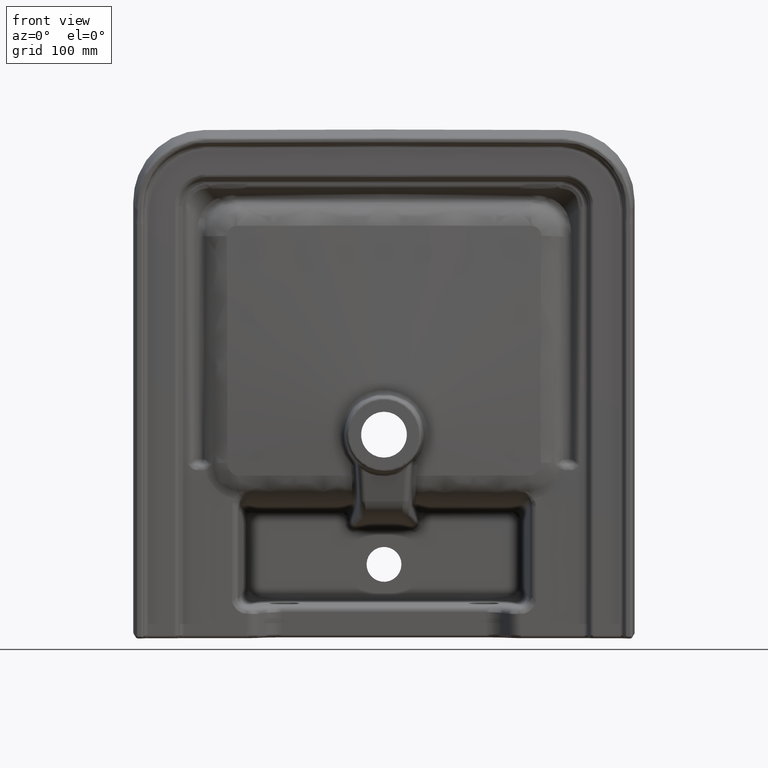
[diagram: clean part render]
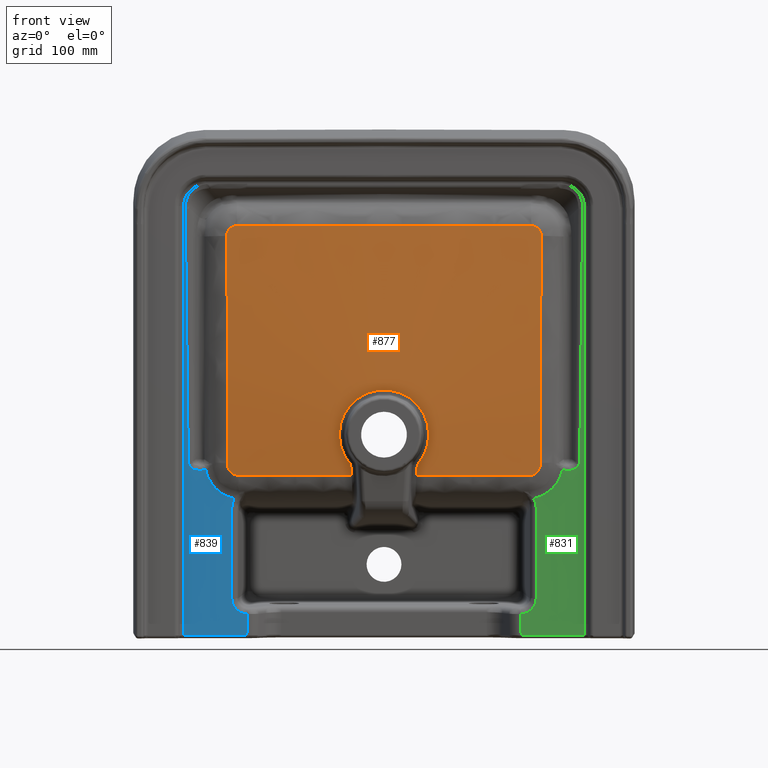
[diagram: same view with three faces highlighted in distinct colors, each labeled with its STEP entity id]
A machine part, front view with three faces highlighted in distinct colors.
Their STEP definitions:

[orange] entity #877 — the highlighted conical surface has half-angle 87 deg.
#877=ADVANCED_FACE('',(#1174),#1132,.T.);
#1132=CONICAL_SURFACE('',#4756,37.9820213470923,86.9999999999996);
#1174=FACE_OUTER_BOUND('',#1479,.T.);
#1479=EDGE_LOOP('',(#2217,#2218,#2219,#2220,#2221,#2222,#2223,#2224,#2225,
#2226,#2227,#2228,#2229,#2230));
#1749=CIRCLE('',#4755,44.7462954527049);
#2217=ORIENTED_EDGE('',*,*,#3921,.F.);
#2218=ORIENTED_EDGE('',*,*,#3970,.T.);
#2219=ORIENTED_EDGE('',*,*,#3971,.T.);
#2220=ORIENTED_EDGE('',*,*,#3972,.T.);
#2221=ORIENTED_EDGE('',*,*,#3973,.T.);
#2222=ORIENTED_EDGE('',*,*,#3974,.T.);
#2223=ORIENTED_EDGE('',*,*,#3975,.T.);
#2224=ORIENTED_EDGE('',*,*,#3976,.T.);
#2225=ORIENTED_EDGE('',*,*,#3977,.F.);
#2226=ORIENTED_EDGE('',*,*,#3978,.T.);
#2227=ORIENTED_EDGE('',*,*,#3969,.F.);
#2228=ORIENTED_EDGE('',*,*,#3962,.F.);
#2229=ORIENTED_EDGE('',*,*,#3966,.T.);
#2230=ORIENTED_EDGE('',*,*,#3914,.F.);
#3504=VERTEX_POINT('',#6791);
#3505=VERTEX_POINT('',#6800);
#3510=VERTEX_POINT('',#7107);
#3540=VERTEX_POINT('',#7634);
#3541=VERTEX_POINT('',#7641);
#3544=VERTEX_POINT('',#7742);
#3545=VERTEX_POINT('',#7780);
#3546=VERTEX_POINT('',#7788);
#3547=VERTEX_POINT('',#7790);
#3548=VERTEX_POINT('',#7798);
#3549=VERTEX_POINT('',#7806);
#3550=VERTEX_POINT('',#7813);
#3551=VERTEX_POINT('',#7826);
#3552=VERTEX_POINT('',#7833);
#3914=EDGE_CURVE('',#3504,#3505,#4458,.T.);
#3921=EDGE_CURVE('',#3510,#3504,#4462,.T.);
#3962=EDGE_CURVE('',#3540,#3541,#4486,.T.);
#3966=EDGE_CURVE('',#3540,#3505,#4490,.T.);
#3969=EDGE_CURVE('',#3541,#3544,#4493,.T.);
#3970=EDGE_CURVE('',#3510,#3545,#4494,.T.);
#3971=EDGE_CURVE('',#3545,#3546,#4495,.T.);
#3972=EDGE_CURVE('',#3546,#3547,#1749,.T.);
#3973=EDGE_CURVE('',#3547,#3548,#4496,.T.);
#3974=EDGE_CURVE('',#3548,#3549,#4497,.T.);
#3975=EDGE_CURVE('',#3549,#3550,#4498,.T.);
#3976=EDGE_CURVE('',#3550,#3551,#4499,.T.);
#3977=EDGE_CURVE('',#3552,#3551,#4500,.T.);
#3978=EDGE_CURVE('',#3552,#3544,#4501,.T.);
#4458=B_SPLINE_CURVE_WITH_KNOTS('',3,(#6792,#6793,#6794,#6795,#6796,#6797,
#6798,#6799),.UNSPECIFIED.,.F.,.F.,(4,2,2,4),(0.,0.499999999999999,0.749999999999999,
1.),.UNSPECIFIED.);
#4462=B_SPLINE_CURVE_WITH_KNOTS('',3,(#7108,#7109,#7110,#7111,#7112,#7113),
 .UNSPECIFIED.,.F.,.F.,(4,2,4),(0.,0.5,1.),.UNSPECIFIED.);
#4486=B_SPLINE_CURVE_WITH_KNOTS('',3,(#7635,#7636,#7637,#7638,#7639,#7640),
 .UNSPECIFIED.,.F.,.F.,(4,2,4),(0.,0.5,1.),.UNSPECIFIED.);
#4490=B_SPLINE_CURVE_WITH_KNOTS('',3,(#7705,#7706,#7707,#7708,#7709,#7710),
 .UNSPECIFIED.,.F.,.F.,(4,2,4),(0.,0.5,1.),.UNSPECIFIED.);
#4493=B_SPLINE_CURVE_WITH_KNOTS('',3,(#7749,#7750,#7751,#7752,#7753,#7754),
 .UNSPECIFIED.,.F.,.F.,(4,2,4),(0.,0.5,1.),.UNSPECIFIED.);
#4494=B_SPLINE_CURVE_WITH_KNOTS('',3,(#7773,#7774,#7775,#7776,#7777,#7778,
#7779),.UNSPECIFIED.,.F.,.F.,(4,3,4),(0.,0.874748321179559,1.),
 .UNSPECIFIED.);
#4495=B_SPLINE_CURVE_WITH_KNOTS('',3,(#7781,#7782,#7783,#7784,#7785,#7786,
#7787),.UNSPECIFIED.,.F.,.F.,(4,3,4),(0.,0.500229342575856,1.),
 .UNSPECIFIED.);
#4496=B_SPLINE_CURVE_WITH_KNOTS('',3,(#7791,#7792,#7793,#7794,#7795,#7796,
#7797),.UNSPECIFIED.,.F.,.F.,(4,3,4),(0.,0.49971391721569,1.),
 .UNSPECIFIED.);
#4497=B_SPLINE_CURVE_WITH_KNOTS('',3,(#7799,#7800,#7801,#7802,#7803,#7804,
#7805),.UNSPECIFIED.,.F.,.F.,(4,3,4),(0.,0.874749603145599,1.),
 .UNSPECIFIED.);
#4498=B_SPLINE_CURVE_WITH_KNOTS('',3,(#7807,#7808,#7809,#7810,#7811,#7812),
 .UNSPECIFIED.,.F.,.F.,(4,2,4),(0.,0.5,1.),.UNSPECIFIED.);
#4499=B_SPLINE_CURVE_WITH_KNOTS('',3,(#7814,#7815,#7816,#7817,#7818,#7819,
#7820,#7821,#7822,#7823,#7824,#7825),.UNSPECIFIED.,.F.,.F.,(4,2,2,2,2,4),
(0.,0.249999999999999,0.499999999999997,0.624999999999998,0.749999999999999,
1.),.UNSPECIFIED.);
#4500=B_SPLINE_CURVE_WITH_KNOTS('',3,(#7827,#7828,#7829,#7830,#7831,#7832),
 .UNSPECIFIED.,.F.,.F.,(4,2,4),(0.,0.5,1.),.UNSPECIFIED.);
#4501=B_SPLINE_CURVE_WITH_KNOTS('',3,(#7834,#7835,#7836,#7837,#7838,#7839),
 .UNSPECIFIED.,.F.,.F.,(4,2,4),(0.,0.5,1.),.UNSPECIFIED.);
#4755=AXIS2_PLACEMENT_3D('',#7789,#5340,#5341);
#4756=AXIS2_PLACEMENT_3D('',#7840,#5342,#5343);
#5340=DIRECTION('',(-6.34801581780895E-016,-6.93889390390723E-017,1.));
#5341=DIRECTION('',(0.,-1.,0.));
#5342=DIRECTION('',(-6.34801581780895E-016,-6.93889390390723E-017,1.));
#5343=DIRECTION('',(0.,-1.,-7.04083403551022E-017));
#6791=CARTESIAN_POINT('',(-145.554523362526,31.3025230196488,-88.4656582222858));
#6792=CARTESIAN_POINT('',(-145.554523362526,31.3025230196488,-88.4656582222858));
#6793=CARTESIAN_POINT('',(-148.882852242933,31.3085658589114,-88.2976231939072));
#6794=CARTESIAN_POINT('',(-151.958828744813,29.4980595286883,-88.1673626140171));
#6795=CARTESIAN_POINT('',(-154.895589265459,25.8305807432552,-88.0620585088615));
#6796=CARTESIAN_POINT('',(-155.632770311051,24.4235015863187,-88.0404557178409));
#6797=CARTESIAN_POINT('',(-156.554024810186,21.5393208026177,-88.024002049375));
#6798=CARTESIAN_POINT('',(-156.755211677679,20.0439413903544,-88.0285207375483));
#6799=CARTESIAN_POINT('',(-156.754727608147,18.5522291548998,-88.0423274827736));
#6800=CARTESIAN_POINT('',(-156.754727608147,18.5522291549,-88.0423274827736));
#7107=CARTESIAN_POINT('',(-32.5179553833555,31.6342061924633,-93.6393109920751));
#7108=CARTESIAN_POINT('',(-32.5179553833555,31.6342061924633,-93.6393109920751));
#7109=CARTESIAN_POINT('',(-51.3672196133581,31.4181567759858,-93.0357722966846));
#7110=CARTESIAN_POINT('',(-70.2077153502199,31.3148044112133,-92.1516979892438));
#7111=CARTESIAN_POINT('',(-107.883467004444,31.2488477206845,-90.3581168637296));
#7112=CARTESIAN_POINT('',(-126.719217152985,31.268388040414,-89.4165823669746));
#7113=CARTESIAN_POINT('',(-145.554523362526,31.3025230196489,-88.4656582222858));
#7634=CARTESIAN_POINT('',(-157.293445409113,-208.422860572705,-83.0986228961144));
#7635=CARTESIAN_POINT('',(-157.293445409113,-208.422860572705,-83.0986228961144));
#7636=CARTESIAN_POINT('',(-157.31037487513,-211.065636254106,-82.9894354316689));
#7637=CARTESIAN_POINT('',(-156.306318011308,-213.692928676144,-82.9130877165868));
#7638=CARTESIAN_POINT('',(-152.66030199412,-217.436376295259,-82.870745639926));
#7639=CARTESIAN_POINT('',(-150.038968170621,-218.509386335489,-82.9057552560283));
#7640=CARTESIAN_POINT('',(-147.393974167425,-218.515207700528,-82.985397369272));
#7641=CARTESIAN_POINT('',(-147.393974167425,-218.515207700528,-82.985397369272));
#7705=CARTESIAN_POINT('',(-157.293445409113,-208.422860572705,-83.0986228961144));
#7706=CARTESIAN_POINT('',(-157.051232070858,-170.610107429827,-84.6608733575061));
#7707=CARTESIAN_POINT('',(-156.88458345608,-132.793085909072,-86.0773584915201));
#7708=CARTESIAN_POINT('',(-156.73998733156,-57.1400139543229,-87.9810480569293));
#7709=CARTESIAN_POINT('',(-156.742352540124,-19.3019306750332,-88.3926965041148));
#7710=CARTESIAN_POINT('',(-156.754727608147,18.5522291548998,-88.0423274827736));
#7742=CARTESIAN_POINT('',(147.393974167425,-218.515207700528,-82.985397369272));
#7749=CARTESIAN_POINT('',(-147.393974167425,-218.515207700529,-82.985397369272));
#7750=CARTESIAN_POINT('',(-98.2697081576221,-218.623325255658,-84.4645539767458));
#7751=CARTESIAN_POINT('',(-49.1354527045037,-218.695197202606,-85.4258363238161));
#7752=CARTESIAN_POINT('',(49.1290554626531,-218.695203439317,-85.4259147465328));
#7753=CARTESIAN_POINT('',(98.2697612986819,-218.623325138645,-84.4645523766442));
#7754=CARTESIAN_POINT('',(147.393974167425,-218.515207700445,-82.9853973692754));
#7773=CARTESIAN_POINT('',(-32.5179553833555,31.6342061924633,-93.6393109920751));
#7774=CARTESIAN_POINT('',(-32.74869131655,28.5117103219667,-93.7602145284705));
#7775=CARTESIAN_POINT('',(-32.9794880326108,25.3889480942862,-93.8745142739354));
#7776=CARTESIAN_POINT('',(-33.2109302013739,22.2659094326996,-93.9789232678108));
#7777=CARTESIAN_POINT('',(-33.2440695980819,21.8187324221584,-93.9938732273899));
#7778=CARTESIAN_POINT('',(-33.2772231692795,21.3715495573298,-94.0086182366609));
#7779=CARTESIAN_POINT('',(-33.3103936382291,20.9243609493631,-94.0231464353329));
#7780=CARTESIAN_POINT('',(-33.3103936382291,20.9243609493631,-94.0231464353329));
#7781=CARTESIAN_POINT('',(-33.3103936382291,20.9243609493631,-94.0231464353329));
#7782=CARTESIAN_POINT('',(-33.3249522130228,20.7280891147427,-94.0295228862449));
#7783=CARTESIAN_POINT('',(-33.3716960155278,20.5316699715773,-94.0346156673274));
#7784=CARTESIAN_POINT('',(-33.4473778752837,20.3499118078292,-94.0380024513947));
#7785=CARTESIAN_POINT('',(-33.5229863098715,20.1683299825559,-94.0413859496655));
#7786=CARTESIAN_POINT('',(-33.6293780303713,19.9968537726137,-94.043149453271));
#7787=CARTESIAN_POINT('',(-33.7585005532792,19.8484374096721,-94.043149453271));
#7788=CARTESIAN_POINT('',(-33.7585005532759,19.8484374096691,-94.0431494532713));
#7789=CARTESIAN_POINT('',(2.31796640504317E-014,-9.52152338593345,-94.0431494532713));
#7790=CARTESIAN_POINT('',(33.7585005532817,19.8484374096684,-94.0431494532711));
#7791=CARTESIAN_POINT('',(33.7585005532817,19.8484374096684,-94.0431494532711));
#7792=CARTESIAN_POINT('',(33.6293923136813,19.9968373550511,-94.0431494532711));
#7793=CARTESIAN_POINT('',(33.5230098784676,20.168291726284,-94.0413863503453));
#7794=CARTESIAN_POINT('',(33.4474032959059,20.3498507605412,-94.0380035888646));
#7795=CARTESIAN_POINT('',(33.3717065526435,20.5316263035891,-94.0346167934476));
#7796=CARTESIAN_POINT('',(33.3249538219857,20.7280674234645,-94.029523590948));
#7797=CARTESIAN_POINT('',(33.3103936382292,20.9243609493621,-94.023146435333));
#7798=CARTESIAN_POINT('',(33.3103936382292,20.9243609493621,-94.023146435333));
#7799=CARTESIAN_POINT('',(33.3103936382292,20.9243609493621,-94.023146435333));
#7800=CARTESIAN_POINT('',(33.0787341379789,24.0474850027641,-93.9216828338081));
#7801=CARTESIAN_POINT('',(32.847849184382,27.170333622141,-93.8097516808954));
#7802=CARTESIAN_POINT('',(32.6170764113239,30.2929071177054,-93.6908251008463));
#7803=CARTESIAN_POINT('',(32.5840332662292,30.740012067373,-93.6737966265245));
#7804=CARTESIAN_POINT('',(32.5509933000522,31.1871117281255,-93.6566225607955));
#7805=CARTESIAN_POINT('',(32.5179553833556,31.6342061924633,-93.6393109920751));
#7806=CARTESIAN_POINT('',(32.5179553833556,31.6342061924633,-93.6393109920751));
#7807=CARTESIAN_POINT('',(32.5179553833556,31.6342061924633,-93.6393109920751));
#7808=CARTESIAN_POINT('',(51.3672196133582,31.4181567759858,-93.0357722966846));
#7809=CARTESIAN_POINT('',(70.20771535022,31.3148044112133,-92.1516979892438));
#7810=CARTESIAN_POINT('',(107.883467004444,31.2488477206845,-90.3581168637296));
#7811=CARTESIAN_POINT('',(126.719217152985,31.268388040414,-89.4165823669746));
#7812=CARTESIAN_POINT('',(145.554523362526,31.3025230196489,-88.4656582222858));
#7813=CARTESIAN_POINT('',(145.554523362526,31.3025230196488,-88.4656582222858));
#7814=CARTESIAN_POINT('',(145.554523362526,31.3025230196488,-88.4656582222856));
#7815=CARTESIAN_POINT('',(147.169671628354,31.3053434913639,-88.3841169381281));
#7816=CARTESIAN_POINT('',(148.853882797833,30.8404140736897,-88.3056032497362));
#7817=CARTESIAN_POINT('',(151.654531253462,29.3584694233233,-88.1834817515871));
#7818=CARTESIAN_POINT('',(152.94983562488,28.2603585748887,-88.131829230183));
#7819=CARTESIAN_POINT('',(154.400085825426,26.4494312201552,-88.0798252007783));
#7820=CARTESIAN_POINT('',(154.838321600758,25.7795671141186,-88.0653386515768));
#7821=CARTESIAN_POINT('',(155.559242355128,24.4269070068363,-88.0438993687645));
#7822=CARTESIAN_POINT('',(155.874097145084,23.6679608204411,-88.0361457793094));
#7823=CARTESIAN_POINT('',(156.531998391688,21.6083119425226,-88.0243950922046));
#7824=CARTESIAN_POINT('',(156.755224118734,20.126072833558,-88.0277612919265));
#7825=CARTESIAN_POINT('',(156.754727608147,18.5522291549001,-88.0423274827735));
#7826=CARTESIAN_POINT('',(156.754727608147,18.5522291549,-88.0423274827736));
#7827=CARTESIAN_POINT('',(157.293445409113,-208.422860572705,-83.0986228961144));
#7828=CARTESIAN_POINT('',(157.051232070858,-170.610107429827,-84.6608733575061));
#7829=CARTESIAN_POINT('',(156.88458345608,-132.793085909072,-86.0773584915201));
#7830=CARTESIAN_POINT('',(156.73998733156,-57.1400139543229,-87.9810480569293));
#7831=CARTESIAN_POINT('',(156.742352540124,-19.3019306750332,-88.3926965041148));
#7832=CARTESIAN_POINT('',(156.754727608147,18.5522291548998,-88.0423274827736));
#7833=CARTESIAN_POINT('',(157.293445409113,-208.422860572705,-83.0986228961144));
#7834=CARTESIAN_POINT('',(157.293445409113,-208.422860572705,-83.0986228961144));
#7835=CARTESIAN_POINT('',(157.31037487513,-211.065636254106,-82.9894354316689));
#7836=CARTESIAN_POINT('',(156.306318011308,-213.692928676144,-82.9130877165868));
#7837=CARTESIAN_POINT('',(152.66030199412,-217.436376295259,-82.870745639926));
#7838=CARTESIAN_POINT('',(150.038968170621,-218.509386335489,-82.9057552560283));
#7839=CARTESIAN_POINT('',(147.393974167425,-218.515207700528,-82.985397369272));
#7840=CARTESIAN_POINT('',(4.40864192343333E-013,-9.5215233859336,-94.3976500376082));

[blue] entity #839 — the highlighted planar face has unit normal (0.0008, -1, -0).
#403=PLANE('',#4687);
#445=ELLIPSE('',#4684,16.1226229395894,15.98);
#446=ELLIPSE('',#4685,18.8098032721995,12.22);
#447=ELLIPSE('',#4686,58.862042705304,34.582882);
#535=LINE('',#6281,#688);
#536=LINE('',#6284,#689);
#537=LINE('',#6286,#690);
#538=LINE('',#6290,#691);
#539=LINE('',#6319,#692);
#540=LINE('',#6323,#693);
#541=LINE('',#6327,#694);
#688=VECTOR('',#5104,1.);
#689=VECTOR('',#5105,1.);
#690=VECTOR('',#5106,1.);
#691=VECTOR('',#5109,1.);
#692=VECTOR('',#5110,1.);
#693=VECTOR('',#5113,1.);
#694=VECTOR('',#5116,1.);
#839=ADVANCED_FACE('',(#1143),#403,.T.);
#1143=FACE_OUTER_BOUND('',#1432,.T.);
#1432=EDGE_LOOP('',(#1964,#1965,#1966,#1967,#1968,#1969,#1970,#1971,#1972,
#1973,#1974,#1975,#1976,#1977,#1978,#1979,#1980));
#1964=ORIENTED_EDGE('',*,*,#3755,.T.);
#1965=ORIENTED_EDGE('',*,*,#3756,.T.);
#1966=ORIENTED_EDGE('',*,*,#3757,.T.);
#1967=ORIENTED_EDGE('',*,*,#3758,.T.);
#1968=ORIENTED_EDGE('',*,*,#3759,.T.);
#1969=ORIENTED_EDGE('',*,*,#3760,.T.);
#1970=ORIENTED_EDGE('',*,*,#3761,.T.);
#1971=ORIENTED_EDGE('',*,*,#3762,.T.);
#1972=ORIENTED_EDGE('',*,*,#3763,.F.);
#1973=ORIENTED_EDGE('',*,*,#3763,.T.);
#1974=ORIENTED_EDGE('',*,*,#3764,.T.);
#1975=ORIENTED_EDGE('',*,*,#3765,.T.);
#1976=ORIENTED_EDGE('',*,*,#3766,.T.);
#1977=ORIENTED_EDGE('',*,*,#3767,.T.);
#1978=ORIENTED_EDGE('',*,*,#3768,.T.);
#1979=ORIENTED_EDGE('',*,*,#3769,.T.);
#1980=ORIENTED_EDGE('',*,*,#3770,.T.);
#3349=VERTEX_POINT('',#6282);
#3350=VERTEX_POINT('',#6283);
#3351=VERTEX_POINT('',#6285);
#3352=VERTEX_POINT('',#6287);
#3353=VERTEX_POINT('',#6289);
#3354=VERTEX_POINT('',#6291);
#3355=VERTEX_POINT('',#6296);
#3356=VERTEX_POINT('',#6303);
#3357=VERTEX_POINT('',#6308);
#3358=VERTEX_POINT('',#6313);
#3359=VERTEX_POINT('',#6318);
#3360=VERTEX_POINT('',#6320);
#3361=VERTEX_POINT('',#6322);
#3362=VERTEX_POINT('',#6324);
#3363=VERTEX_POINT('',#6326);
#3364=VERTEX_POINT('',#6328);
#3755=EDGE_CURVE('',#3349,#3350,#535,.T.);
#3756=EDGE_CURVE('',#3350,#3351,#536,.T.);
#3757=EDGE_CURVE('',#3351,#3352,#537,.T.);
#3758=EDGE_CURVE('',#3352,#3353,#445,.T.);
#3759=EDGE_CURVE('',#3353,#3354,#538,.T.);
#3760=EDGE_CURVE('',#3354,#3355,#4430,.T.);
#3761=EDGE_CURVE('',#3355,#3356,#4431,.T.);
#3762=EDGE_CURVE('',#3356,#3357,#4432,.T.);
#3763=EDGE_CURVE('',#3358,#3357,#4433,.T.);
#3764=EDGE_CURVE('',#3357,#3359,#4434,.T.);
#3765=EDGE_CURVE('',#3359,#3360,#539,.T.);
#3766=EDGE_CURVE('',#3360,#3361,#446,.T.);
#3767=EDGE_CURVE('',#3361,#3362,#540,.T.);
#3768=EDGE_CURVE('',#3362,#3363,#447,.T.);
#3769=EDGE_CURVE('',#3363,#3364,#541,.T.);
#3770=EDGE_CURVE('',#3364,#3349,#4435,.T.);
#4430=B_SPLINE_CURVE_WITH_KNOTS('',3,(#6292,#6293,#6294,#6295),
 .UNSPECIFIED.,.F.,.F.,(4,4),(0.,1.),.UNSPECIFIED.);
#4431=B_SPLINE_CURVE_WITH_KNOTS('',3,(#6297,#6298,#6299,#6300,#6301,#6302),
 .UNSPECIFIED.,.F.,.F.,(4,2,4),(0.,0.5,1.),.UNSPECIFIED.);
#4432=B_SPLINE_CURVE_WITH_KNOTS('',3,(#6304,#6305,#6306,#6307),
 .UNSPECIFIED.,.F.,.F.,(4,4),(0.,1.),.UNSPECIFIED.);
#4433=B_SPLINE_CURVE_WITH_KNOTS('',3,(#6309,#6310,#6311,#6312),
 .UNSPECIFIED.,.F.,.F.,(4,4),(0.,1.),.UNSPECIFIED.);
#4434=B_SPLINE_CURVE_WITH_KNOTS('',3,(#6314,#6315,#6316,#6317),
 .UNSPECIFIED.,.F.,.F.,(4,4),(0.,1.),.UNSPECIFIED.);
#4435=B_SPLINE_CURVE_WITH_KNOTS('',3,(#6329,#6330,#6331,#6332,#6333,#6334,
#6335,#6336),.UNSPECIFIED.,.F.,.F.,(4,2,2,4),(0.,0.25,0.499999999999999,
1.),.UNSPECIFIED.);
#4684=AXIS2_PLACEMENT_3D('',#6288,#5107,#5108);
#4685=AXIS2_PLACEMENT_3D('',#6321,#5111,#5112);
#4686=AXIS2_PLACEMENT_3D('',#6325,#5114,#5115);
#4687=AXIS2_PLACEMENT_3D('',#6337,#5117,#5118);
#5104=DIRECTION('',(-1.09668133949059E-014,1.,-6.93889390390723E-018));
#5105=DIRECTION('',(0.999999675187911,-2.25058888599488E-005,0.000805678321642873));
#5106=DIRECTION('',(0.0244489198540633,-0.999701080288483,1.96979711121412E-005));
#5107=DIRECTION('',(-0.000805678321846919,1.35525271560688E-018,0.999999675441169));
#5108=DIRECTION('',(-0.791515363498673,0.611148936573873,-0.000637706976753097));
#5109=DIRECTION('',(-8.60585474410369E-019,-1.,0.));
#5110=DIRECTION('',(-0.99999967295691,-7.0487718409403E-005,-0.000805678319845403));
#5111=DIRECTION('',(-0.000805678321846922,2.81892564846231E-018,0.999999675441169));
#5112=DIRECTION('',(0.849660671094597,-0.527329380351326,0.000684553405804679));
#5113=DIRECTION('',(-0.012030979209747,-0.999927625103587,-9.6931022858654E-006));
#5114=DIRECTION('',(-0.000805678321846916,5.42101086242752E-019,0.999999675441169));
#5115=DIRECTION('',(-0.73542595383942,-0.677604837160313,-0.000592516940638617));
#5116=DIRECTION('',(-0.999999675441168,-1.35525271560688E-020,-0.000805678321846917));
#5117=DIRECTION('',(0.000805678321846917,0.,-0.999999675441169));
#5118=DIRECTION('',(-0.999999675441168,0.,-0.000805678321846914));
#6281=CARTESIAN_POINT('',(-200.469614772213,194.118403650815,-81.2838568132293));
#6282=CARTESIAN_POINT('',(-200.469614772208,-238.352009875404,-81.2838568132293));
#6283=CARTESIAN_POINT('',(-200.469614772213,191.218440727832,-81.2838568132293));
#6284=CARTESIAN_POINT('',(-204.40300589915,191.218529252324,-81.2870258622201));
#6285=CARTESIAN_POINT('',(-137.26382643631,191.217018224922,-81.2329332632241));
#6286=CARTESIAN_POINT('',(-136.589624370321,163.649316349947,-81.2323900730587));
#6287=CARTESIAN_POINT('',(-136.742208814865,169.888399097017,-81.2325130070778));
#6288=CARTESIAN_POINT('',(-136.231834990304,153.859283916511,-81.2321018098179));
#6289=CARTESIAN_POINT('',(-152.301330717546,153.997110840014,-81.2450486583703));
#6290=CARTESIAN_POINT('',(-152.301330717546,-26.2532284030379,-81.2450486583704));
#6291=CARTESIAN_POINT('',(-152.301330717546,63.6081991663018,-81.2450486583704));
#6292=CARTESIAN_POINT('',(-152.301330717546,63.6081991663018,-81.2450486583704));
#6293=CARTESIAN_POINT('',(-152.301330717546,60.3239927674812,-81.2450486583704));
#6294=CARTESIAN_POINT('',(-151.402775760175,57.1099952094732,-81.2443247118852));
#6295=CARTESIAN_POINT('',(-149.682075984141,54.3110905748606,-81.2429383809273));
#6296=CARTESIAN_POINT('',(-149.682075984141,54.3110905748605,-81.2429383809273));
#6297=CARTESIAN_POINT('',(-149.682075984141,54.3110905748605,-81.2429383809272));
#6298=CARTESIAN_POINT('',(-156.766296071351,52.9763522564394,-81.2486459853312));
#6299=CARTESIAN_POINT('',(-163.419943534301,49.3728213412027,-81.2540066865932));
#6300=CARTESIAN_POINT('',(-173.633677663399,39.0705166351029,-81.2622356734369));
#6301=CARTESIAN_POINT('',(-177.125615772751,32.4612392890354,-81.2650490531858));
#6302=CARTESIAN_POINT('',(-178.523931231237,25.3408973403616,-81.2661756460035));
#6303=CARTESIAN_POINT('',(-178.523931231237,25.3408973403616,-81.2661756460035));
#6304=CARTESIAN_POINT('',(-178.523931231237,25.3408973403616,-81.2661756460035));
#6305=CARTESIAN_POINT('',(-179.238095896102,25.5874482822918,-81.266751033179));
#6306=CARTESIAN_POINT('',(-179.977218526813,25.7686507936071,-81.2673465284531));
#6307=CARTESIAN_POINT('',(-180.72283393797,25.8906186760712,-81.2679472548213));
#6308=CARTESIAN_POINT('',(-180.72283393797,25.8906186760712,-81.2679472548213));
#6309=CARTESIAN_POINT('',(-179.136553996914,58.2105475791373,-81.2666692230456));
#6310=CARTESIAN_POINT('',(-179.850455449712,47.4550593766807,-81.2672443981567));
#6311=CARTESIAN_POINT('',(-180.368915866336,36.6773641445048,-81.2676621106107));
#6312=CARTESIAN_POINT('',(-180.72283393797,25.8906186760712,-81.2679472548213));
#6313=CARTESIAN_POINT('',(-179.136553996916,58.2105475791375,-81.2666692230456));
#6314=CARTESIAN_POINT('',(-180.72283393797,25.8906186760712,-81.2679472548213));
#6315=CARTESIAN_POINT('',(-181.543918392076,26.0249317960698,-81.2686087849811));
#6316=CARTESIAN_POINT('',(-182.378978323241,26.0884843301217,-81.2692815748834));
#6317=CARTESIAN_POINT('',(-183.21097572698,26.0884256845038,-81.269951897373));
#6318=CARTESIAN_POINT('',(-183.21097572698,26.0884256845038,-81.269951897373));
#6319=CARTESIAN_POINT('',(-188.108620608743,26.0880804605776,-81.273897824963));
#6320=CARTESIAN_POINT('',(-185.002389358947,26.0882994118029,-81.2713952009702));
#6321=CARTESIAN_POINT('',(-178.620764537476,11.7289986384218,-81.2662536625246));
#6322=CARTESIAN_POINT('',(-195.852184146551,17.1691980733858,-81.2801366482641));
#6323=CARTESIAN_POINT('',(-196.375799040368,-26.3498695033327,-81.28055851357));
#6324=CARTESIAN_POINT('',(-198.896043986885,-235.814327891581,-81.2825890209482));
#6325=CARTESIAN_POINT('',(-149.674211176734,-213.26778439393,-81.2429320444204));
#6326=CARTESIAN_POINT('',(-175.030244545317,-260.544265038048,-81.2633608574639));
#6327=CARTESIAN_POINT('',(-178.274133224267,-260.544265038048,-81.2659743890992));
#6328=CARTESIAN_POINT('',(-178.27735964936,-260.544265038048,-81.2659769885608));
#6329=CARTESIAN_POINT('',(-178.27735964936,-260.544265038048,-81.2659769885608));
#6330=CARTESIAN_POINT('',(-181.209208037947,-260.544265038246,-81.2683391160171));
#6331=CARTESIAN_POINT('',(-184.07490003939,-259.970798144217,-81.270647942689));
#6332=CARTESIAN_POINT('',(-189.458431320689,-257.741897365393,-81.2749853385451));
#6333=CARTESIAN_POINT('',(-191.915009333419,-256.097461447869,-81.2769645508382));
#6334=CARTESIAN_POINT('',(-198.062132266814,-249.954793260178,-81.2819171561348));
#6335=CARTESIAN_POINT('',(-200.469614772048,-244.213134849003,-81.2838568132292));
#6336=CARTESIAN_POINT('',(-200.469614772208,-238.352009875404,-81.2838568132293));
#6337=CARTESIAN_POINT('',(-204.407900292771,-26.2532284030379,-81.2870298055282));

[green] entity #831 — the highlighted planar face has unit normal (-0.0008, -1, -0).
#401=PLANE('',#4676);
#442=ELLIPSE('',#4673,58.862042705304,34.582882);
#443=ELLIPSE('',#4674,18.8098032721995,12.22);
#444=ELLIPSE('',#4675,16.1226229407007,15.98);
#524=LINE('',#6016,#677);
#525=LINE('',#6019,#678);
#526=LINE('',#6021,#679);
#527=LINE('',#6032,#680);
#528=LINE('',#6036,#681);
#529=LINE('',#6040,#682);
#530=LINE('',#6069,#683);
#677=VECTOR('',#5071,1.);
#678=VECTOR('',#5072,1.);
#679=VECTOR('',#5073,1.);
#680=VECTOR('',#5074,1.);
#681=VECTOR('',#5077,1.);
#682=VECTOR('',#5080,1.);
#683=VECTOR('',#5081,1.);
#831=ADVANCED_FACE('',(#1135),#401,.T.);
#1135=FACE_OUTER_BOUND('',#1424,.T.);
#1424=EDGE_LOOP('',(#1919,#1920,#1921,#1922,#1923,#1924,#1925,#1926,#1927,
#1928,#1929,#1930,#1931,#1932,#1933,#1934,#1935));
#1919=ORIENTED_EDGE('',*,*,#3714,.T.);
#1920=ORIENTED_EDGE('',*,*,#3715,.T.);
#1921=ORIENTED_EDGE('',*,*,#3716,.T.);
#1922=ORIENTED_EDGE('',*,*,#3717,.T.);
#1923=ORIENTED_EDGE('',*,*,#3718,.T.);
#1924=ORIENTED_EDGE('',*,*,#3719,.T.);
#1925=ORIENTED_EDGE('',*,*,#3720,.T.);
#1926=ORIENTED_EDGE('',*,*,#3721,.T.);
#1927=ORIENTED_EDGE('',*,*,#3722,.T.);
#1928=ORIENTED_EDGE('',*,*,#3723,.T.);
#1929=ORIENTED_EDGE('',*,*,#3724,.F.);
#1930=ORIENTED_EDGE('',*,*,#3724,.T.);
#1931=ORIENTED_EDGE('',*,*,#3725,.T.);
#1932=ORIENTED_EDGE('',*,*,#3726,.T.);
#1933=ORIENTED_EDGE('',*,*,#3727,.T.);
#1934=ORIENTED_EDGE('',*,*,#3728,.T.);
#1935=ORIENTED_EDGE('',*,*,#3729,.T.);
#3311=VERTEX_POINT('',#6017);
#3312=VERTEX_POINT('',#6018);
#3313=VERTEX_POINT('',#6020);
#3314=VERTEX_POINT('',#6022);
#3315=VERTEX_POINT('',#6031);
#3316=VERTEX_POINT('',#6033);
#3317=VERTEX_POINT('',#6035);
#3318=VERTEX_POINT('',#6037);
#3319=VERTEX_POINT('',#6039);
#3320=VERTEX_POINT('',#6041);
#3321=VERTEX_POINT('',#6046);
#3322=VERTEX_POINT('',#6051);
#3323=VERTEX_POINT('',#6056);
#3324=VERTEX_POINT('',#6063);
#3325=VERTEX_POINT('',#6068);
#3326=VERTEX_POINT('',#6070);
#3714=EDGE_CURVE('',#3311,#3312,#524,.T.);
#3715=EDGE_CURVE('',#3312,#3313,#525,.T.);
#3716=EDGE_CURVE('',#3313,#3314,#526,.T.);
#3717=EDGE_CURVE('',#3314,#3315,#4409,.T.);
#3718=EDGE_CURVE('',#3315,#3316,#527,.T.);
#3719=EDGE_CURVE('',#3316,#3317,#442,.T.);
#3720=EDGE_CURVE('',#3317,#3318,#528,.T.);
#3721=EDGE_CURVE('',#3318,#3319,#443,.T.);
#3722=EDGE_CURVE('',#3319,#3320,#529,.T.);
#3723=EDGE_CURVE('',#3320,#3321,#4410,.T.);
#3724=EDGE_CURVE('',#3322,#3321,#4411,.T.);
#3725=EDGE_CURVE('',#3321,#3323,#4412,.T.);
#3726=EDGE_CURVE('',#3323,#3324,#4413,.T.);
#3727=EDGE_CURVE('',#3324,#3325,#4414,.T.);
#3728=EDGE_CURVE('',#3325,#3326,#530,.T.);
#3729=EDGE_CURVE('',#3326,#3311,#444,.T.);
#4409=B_SPLINE_CURVE_WITH_KNOTS('',3,(#6023,#6024,#6025,#6026,#6027,#6028,
#6029,#6030),.UNSPECIFIED.,.F.,.F.,(4,2,2,4),(0.,0.499999999999999,0.75,
1.),.UNSPECIFIED.);
#4410=B_SPLINE_CURVE_WITH_KNOTS('',3,(#6042,#6043,#6044,#6045),
 .UNSPECIFIED.,.F.,.F.,(4,4),(0.,1.),.UNSPECIFIED.);
#4411=B_SPLINE_CURVE_WITH_KNOTS('',3,(#6047,#6048,#6049,#6050),
 .UNSPECIFIED.,.F.,.F.,(4,4),(0.,1.),.UNSPECIFIED.);
#4412=B_SPLINE_CURVE_WITH_KNOTS('',3,(#6052,#6053,#6054,#6055),
 .UNSPECIFIED.,.F.,.F.,(4,4),(0.,1.),.UNSPECIFIED.);
#4413=B_SPLINE_CURVE_WITH_KNOTS('',3,(#6057,#6058,#6059,#6060,#6061,#6062),
 .UNSPECIFIED.,.F.,.F.,(4,2,4),(0.,0.5,1.),.UNSPECIFIED.);
#4414=B_SPLINE_CURVE_WITH_KNOTS('',3,(#6064,#6065,#6066,#6067),
 .UNSPECIFIED.,.F.,.F.,(4,4),(0.,1.),.UNSPECIFIED.);
#4673=AXIS2_PLACEMENT_3D('',#6034,#5075,#5076);
#4674=AXIS2_PLACEMENT_3D('',#6038,#5078,#5079);
#4675=AXIS2_PLACEMENT_3D('',#6071,#5082,#5083);
#4676=AXIS2_PLACEMENT_3D('',#6072,#5084,#5085);
#5071=DIRECTION('',(0.0244489198540633,0.999701080288483,-1.96979711121412E-005));
#5072=DIRECTION('',(0.999999675187909,2.250594933922E-005,-0.000805678321642872));
#5073=DIRECTION('',(-1.09668133949059E-014,-1.,6.93889390390723E-018));
#5074=DIRECTION('',(-0.999999675441168,-1.35525271560688E-020,0.000805678321846917));
#5075=DIRECTION('',(0.000805678321846916,5.42101086242752E-019,0.999999675441169));
#5076=DIRECTION('',(0.73542595383942,-0.677604837160313,-0.000592516940638617));
#5077=DIRECTION('',(-0.012030979209747,0.999927625103587,9.6931022858654E-006));
#5078=DIRECTION('',(0.000805678321846922,2.81892564846231E-018,0.999999675441169));
#5079=DIRECTION('',(-0.849660671094597,-0.527329380351326,0.000684553405804679));
#5080=DIRECTION('',(-0.99999967295691,7.04877184094029E-005,0.000805678319845403));
#5081=DIRECTION('',(-8.60585474410369E-019,1.,0.));
#5082=DIRECTION('',(0.000805678321846917,-4.33680868994202E-019,0.999999675441169));
#5083=DIRECTION('',(0.791515360401309,0.611148940585355,-0.000637706974257614));
#5084=DIRECTION('',(-0.000805678321846917,0.,-0.999999675441169));
#5085=DIRECTION('',(0.999999675441168,0.,-0.000805678321846914));
#6016=CARTESIAN_POINT('',(137.330356236648,193.937380255902,-81.2329868648594));
#6017=CARTESIAN_POINT('',(136.742208841663,169.888400192767,-81.2325130070994));
#6018=CARTESIAN_POINT('',(137.263826436513,191.217018233224,-81.2329332632243));
#6019=CARTESIAN_POINT('',(204.403005885997,191.218529264686,-81.2870258622095));
#6020=CARTESIAN_POINT('',(200.469614772213,191.218440739956,-81.2838568132293));
#6021=CARTESIAN_POINT('',(200.469614772208,-238.352009875404,-81.2838568132293));
#6022=CARTESIAN_POINT('',(200.469614772208,-238.352009875404,-81.2838568132293));
#6023=CARTESIAN_POINT('',(200.469614772208,-238.352009875404,-81.2838568132293));
#6024=CARTESIAN_POINT('',(200.469614772048,-244.213134848949,-81.2838568132292));
#6025=CARTESIAN_POINT('',(198.062132266857,-249.954793260075,-81.2819171561349));
#6026=CARTESIAN_POINT('',(191.915009333566,-256.097461447751,-81.2769645508384));
#6027=CARTESIAN_POINT('',(189.45843132087,-257.741897365283,-81.2749853385453));
#6028=CARTESIAN_POINT('',(184.074900039652,-259.970798144143,-81.2706479426894));
#6029=CARTESIAN_POINT('',(181.20920803824,-260.544265038246,-81.2683391160174));
#6030=CARTESIAN_POINT('',(178.277359649672,-260.544265038048,-81.2659769885611));
#6031=CARTESIAN_POINT('',(178.277359649672,-260.544265038048,-81.2659769885611));
#6032=CARTESIAN_POINT('',(-2.59168298501767E-017,-260.544265038048,-81.1223427379975));
#6033=CARTESIAN_POINT('',(175.030244545317,-260.544265038048,-81.2633608574639));
#6034=CARTESIAN_POINT('',(149.674211176734,-213.26778439393,-81.2429320444204));
#6035=CARTESIAN_POINT('',(198.896043986885,-235.814327891581,-81.2825890209482));
#6036=CARTESIAN_POINT('',(196.375799040368,-26.3498695033327,-81.28055851357));
#6037=CARTESIAN_POINT('',(195.852184146551,17.1691980733859,-81.2801366482641));
#6038=CARTESIAN_POINT('',(178.620764537476,11.7289986384218,-81.2662536625246));
#6039=CARTESIAN_POINT('',(185.002389358947,26.0882994118029,-81.2713952009702));
#6040=CARTESIAN_POINT('',(180.831277706331,26.0885934240427,-81.2680346256429));
#6041=CARTESIAN_POINT('',(183.21097572698,26.0884256845038,-81.269951897373));
#6042=CARTESIAN_POINT('',(183.21097572698,26.0884256845038,-81.269951897373));
#6043=CARTESIAN_POINT('',(182.378978323241,26.0884843301217,-81.2692815748834));
#6044=CARTESIAN_POINT('',(181.543918392075,26.0249317960698,-81.2686087849811));
#6045=CARTESIAN_POINT('',(180.72283393797,25.8906186760712,-81.2679472548213));
#6046=CARTESIAN_POINT('',(180.72283393797,25.8906186760712,-81.2679472548213));
#6047=CARTESIAN_POINT('',(179.136553996914,58.2105475791373,-81.2666692230456));
#6048=CARTESIAN_POINT('',(179.850455449712,47.4550593766807,-81.2672443981567));
#6049=CARTESIAN_POINT('',(180.368915866336,36.6773641445048,-81.2676621106107));
#6050=CARTESIAN_POINT('',(180.72283393797,25.8906186760712,-81.2679472548213));
#6051=CARTESIAN_POINT('',(179.136553996916,58.2105475791375,-81.2666692230456));
#6052=CARTESIAN_POINT('',(180.72283393797,25.8906186760712,-81.2679472548213));
#6053=CARTESIAN_POINT('',(179.977218526814,25.7686507936071,-81.2673465284531));
#6054=CARTESIAN_POINT('',(179.238095896102,25.5874482822916,-81.2667510331792));
#6055=CARTESIAN_POINT('',(178.523931231236,25.3408973403614,-81.2661756460037));
#6056=CARTESIAN_POINT('',(178.523931231236,25.3408973403614,-81.2661756460037));
#6057=CARTESIAN_POINT('',(178.523931231237,25.3408973403618,-81.2661756460035));
#6058=CARTESIAN_POINT('',(177.125615773761,32.4612392838892,-81.2650490531867));
#6059=CARTESIAN_POINT('',(173.633677626292,39.07051663881,-81.262235673407));
#6060=CARTESIAN_POINT('',(163.419943739922,49.3728211675213,-81.2540066867589));
#6061=CARTESIAN_POINT('',(156.766295654873,52.976352334906,-81.2486459849957));
#6062=CARTESIAN_POINT('',(149.68207598415,54.3110905748587,-81.2429383809274));
#6063=CARTESIAN_POINT('',(149.682075984151,54.3110905748586,-81.2429383809274));
#6064=CARTESIAN_POINT('',(149.682075984143,54.3110905748634,-81.2429383809273));
#6065=CARTESIAN_POINT('',(151.40236740398,57.1093309738758,-81.2443243828814));
#6066=CARTESIAN_POINT('',(152.301330717546,60.3233667299944,-81.2450486583704));
#6067=CARTESIAN_POINT('',(152.301330717546,63.6081991663017,-81.2450486583704));
#6068=CARTESIAN_POINT('',(152.301330717546,63.6081991663017,-81.2450486583704));
#6069=CARTESIAN_POINT('',(152.301330717546,-26.2532284030379,-81.2450486583704));
#6070=CARTESIAN_POINT('',(152.301330717546,153.997111936678,-81.2450486583704));
#6071=CARTESIAN_POINT('',(136.231834990304,153.859285011731,-81.2321018098179));
#6072=CARTESIAN_POINT('',(204.407900292771,-26.2532284030379,-81.2870298055282));